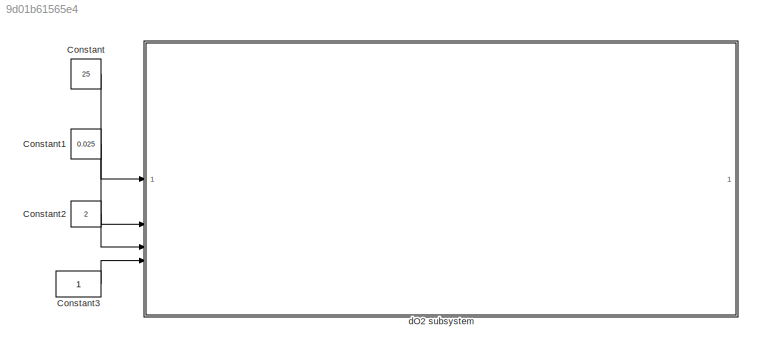
MODEL slx_9d01b61565e4
KIND model
CONFIG AbsTol = auto
CONFIG EnableMultiTasking = off
CONFIG FixedStep = 0.1
CONFIG MaxStep = auto
CONFIG MinStep = auto
CONFIG RelTol = 1e-3
CONFIG SampleTimeConstraint = Unconstrained
CONFIG SolverName = FixedStepAuto
CONFIG StartTime = 0.0
CONFIG StopTime = 10.0
BLOCK [Constant] Constant
  Value = 25
BLOCK [Constant] Constant1
  Value = 0.025
BLOCK [Constant] Constant2
  Value = 2
BLOCK [Constant] Constant3
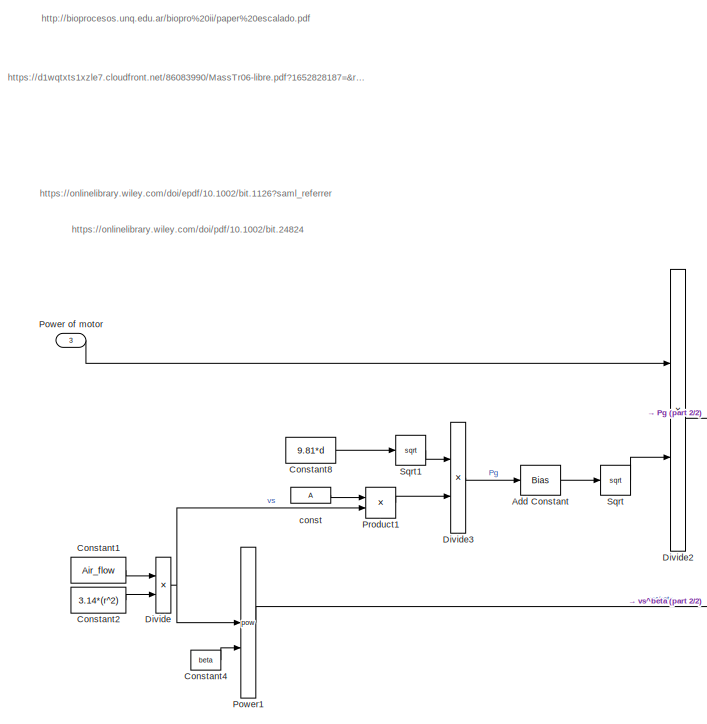
[diagram: dO2 subsystem - part 1/2, left side, full height]
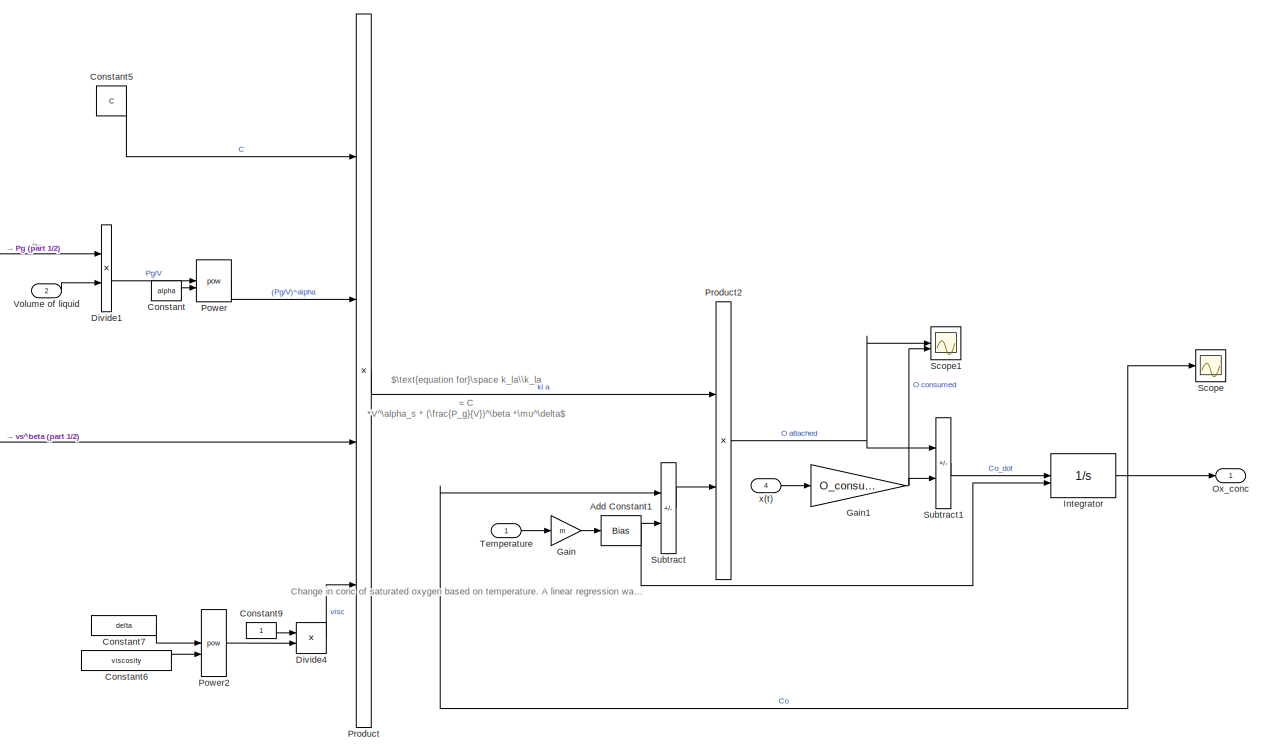
[diagram: dO2 subsystem - part 2/2, right side, full height]
BLOCK [SubSystem] dO2 subsystem
BLOCK [Bias] dO2 subsystem/Add Constant
  Bias = 1
  SaturateOnIntegerOverflow = off
BLOCK [Bias] dO2 subsystem/Add Constant1
  Bias = e
  SaturateOnIntegerOverflow = off
BLOCK [Constant] dO2 subsystem/Constant
  Value = alpha
BLOCK [Constant] dO2 subsystem/Constant1
  Value = Air_flow
BLOCK [Constant] dO2 subsystem/Constant2
  Value = 3.14*(r^2)
BLOCK [Constant] dO2 subsystem/Constant4
  Value = beta
BLOCK [Constant] dO2 subsystem/Constant5
  Value = C
BLOCK [Constant] dO2 subsystem/Constant6
  Value = viscosity
BLOCK [Constant] dO2 subsystem/Constant7
  Value = delta
BLOCK [Constant] dO2 subsystem/Constant8
  Value = 9.81*d
BLOCK [Constant] dO2 subsystem/Constant9
BLOCK [Product] dO2 subsystem/Divide
  Inputs = */
BLOCK [Product] dO2 subsystem/Divide1
  Inputs = */
BLOCK [Product] dO2 subsystem/Divide2
  Inputs = */
BLOCK [Product] dO2 subsystem/Divide3
  Inputs = /*
BLOCK [Product] dO2 subsystem/Divide4
  Inputs = */
BLOCK [Gain] dO2 subsystem/Gain
  Gain = m
BLOCK [Gain] dO2 subsystem/Gain1
  Gain = O_consumed
BLOCK [Integrator] dO2 subsystem/Integrator
  InitialCondition = m*Ti + e
  InitialConditionSource = external
BLOCK [Outport] dO2 subsystem/Ox_conc
BLOCK [Math] dO2 subsystem/Power
  Operator = pow
BLOCK [Inport] dO2 subsystem/Power of motor
  Port = 3
BLOCK [Math] dO2 subsystem/Power1
  Operator = pow
BLOCK [Math] dO2 subsystem/Power2
  Operator = pow
BLOCK [Product] dO2 subsystem/Product
  Inputs = 4
BLOCK [Product] dO2 subsystem/Product1
BLOCK [Product] dO2 subsystem/Product2
BLOCK [Scope] dO2 subsystem/Scope
  Floating = off
  NumInputPorts = 1
  ScopeSpecificationString = Simulink.scopes.TimeScopeBlockCfg('CurrentConfiguration', extmgr.ConfigurationSet(extmgr.Configuration('Core','General UI',true),extmgr.Configuration('Core','Source UI',true),extmgr.Configuration('Sources','WiredSimulink',true),extmgr.Configuration('Visuals','Time Domain',true,'SerializedDisplays',{struct('MinYLimReal','8.38318','MaxYLimReal','8.38409','YLabelReal','','MinYLimMag','8.38318','MaxYL...<+1355ch>
BLOCK [Scope] dO2 subsystem/Scope1
  Floating = off
  NumInputPorts = 2
  ScopeSpecificationString = Simulink.scopes.TimeScopeBlockCfg('CurrentConfiguration', extmgr.ConfigurationSet(extmgr.Configuration('Core','General UI',true),extmgr.Configuration('Core','Source UI',true),extmgr.Configuration('Sources','WiredSimulink',true,'DataLoggingVariableName','ScopeData1'),extmgr.Configuration('Visuals','Time Domain',true,'SerializedDisplays',{struct('MinYLimReal','-0.00001','MaxYLimReal','0.00011','YLab...<+1380ch>
BLOCK [Sqrt] dO2 subsystem/Sqrt
BLOCK [Sqrt] dO2 subsystem/Sqrt1
BLOCK [Sum] dO2 subsystem/Subtract
  IconShape = rectangular
  Inputs = -+
BLOCK [Sum] dO2 subsystem/Subtract1
  IconShape = rectangular
  Inputs = +-
BLOCK [Inport] dO2 subsystem/Temperature
BLOCK [Inport] dO2 subsystem/Volume of liquid
  Port = 2
BLOCK [Constant] dO2 subsystem/const
  Value = A
BLOCK [Inport] dO2 subsystem/x(t)
  Port = 4
ANNOTATION dO2 subsystem: $\text{equation for}\space k_la\\k_la = C *V^\alpha_s * (\frac{P_g}{V})^\beta *\mu^\delta$
ANNOTATION dO2 subsystem: Change in conc of saturated oxygen based on temperature. A linear regression was assumed in the range of 15 - 40 deg C for simplicity as the curve is close to a straight line. (see file Ox_conc_linear_regression.m)
ANNOTATION dO2 subsystem: http://bioprocesos.unq.edu.ar/biopro%20ii/paper%20escalado.pdf
ANNOTATION dO2 subsystem: https://d1wqtxts1xzle7.cloudfront.net/86083990/MassTr06-libre.pdf?1652828187=&response-content-disposition=inline%3B+filename%3DSimultaneous_Determination_of_Oxygen_Con.pdf&Expires=1693320232&Signature=cT0WufUoFrxjuPdJGbVLo4QoXSVqB1llCupeDkbPwvBGTrAJrYMzSobRzxnkgx671FYnx4G-HWNW9pRr5rOW2sojiWm9-xMMdIoObZIgvwRAe8ddChCfE4EtN7E38vVW-~N8isqnocr2KooJIBzTXSX1d969dYKALbyDclzDGhk2mnBZWyIczpO0KS24b7NT1cVUEN...<+179ch>
ANNOTATION dO2 subsystem: https://onlinelibrary.wiley.com/doi/epdf/10.1002/bit.1126?saml_referrer
ANNOTATION dO2 subsystem: https://onlinelibrary.wiley.com/doi/pdf/10.1002/bit.24824
LINE Constant1:1 -> dO2 subsystem:2
LINE Constant2:1 -> dO2 subsystem:3
LINE Constant3:1 -> dO2 subsystem:4
LINE Constant:1 -> dO2 subsystem:1
NET dO2 subsystem/Add Constant1:1 -> dO2 subsystem/Integrator:2, dO2 subsystem/Subtract:2
LINE dO2 subsystem/Add Constant:1 -> dO2 subsystem/Sqrt:1
LINE dO2 subsystem/Constant1:1 -> dO2 subsystem/Divide:1
LINE dO2 subsystem/Constant2:1 -> dO2 subsystem/Divide:2
LINE dO2 subsystem/Constant4:1 -> dO2 subsystem/Power1:2
LINE dO2 subsystem/Constant5:1 -> dO2 subsystem/Product:1
LINE dO2 subsystem/Constant6:1 -> dO2 subsystem/Power2:2
LINE dO2 subsystem/Constant7:1 -> dO2 subsystem/Power2:1
LINE dO2 subsystem/Constant8:1 -> dO2 subsystem/Sqrt1:1
LINE dO2 subsystem/Constant9:1 -> dO2 subsystem/Divide4:1
LINE dO2 subsystem/Constant:1 -> dO2 subsystem/Power:2
LINE dO2 subsystem/Divide1:1 -> dO2 subsystem/Power:1
LINE dO2 subsystem/Divide2:1 -> dO2 subsystem/Divide1:1
LINE dO2 subsystem/Divide3:1 -> dO2 subsystem/Add Constant:1
LINE dO2 subsystem/Divide4:1 -> dO2 subsystem/Product:4
NET dO2 subsystem/Divide:1 -> dO2 subsystem/Power1:1, dO2 subsystem/Product1:2
NET dO2 subsystem/Gain1:1 -> dO2 subsystem/Scope1:2, dO2 subsystem/Subtract1:2
LINE dO2 subsystem/Gain:1 -> dO2 subsystem/Add Constant1:1
NET dO2 subsystem/Integrator:1 -> dO2 subsystem/Ox_conc:1, dO2 subsystem/Scope:1, dO2 subsystem/Subtract:1
LINE dO2 subsystem/Power of motor:1 -> dO2 subsystem/Divide2:1
LINE dO2 subsystem/Power1:1 -> dO2 subsystem/Product:3
LINE dO2 subsystem/Power2:1 -> dO2 subsystem/Divide4:2
LINE dO2 subsystem/Power:1 -> dO2 subsystem/Product:2
LINE dO2 subsystem/Product1:1 -> dO2 subsystem/Divide3:2
NET dO2 subsystem/Product2:1 -> dO2 subsystem/Scope1:1, dO2 subsystem/Subtract1:1
LINE dO2 subsystem/Product:1 -> dO2 subsystem/Product2:1
LINE dO2 subsystem/Sqrt1:1 -> dO2 subsystem/Divide3:1
LINE dO2 subsystem/Sqrt:1 -> dO2 subsystem/Divide2:2
LINE dO2 subsystem/Subtract1:1 -> dO2 subsystem/Integrator:1
LINE dO2 subsystem/Subtract:1 -> dO2 subsystem/Product2:2
LINE dO2 subsystem/Temperature:1 -> dO2 subsystem/Gain:1
LINE dO2 subsystem/Volume of liquid:1 -> dO2 subsystem/Divide1:2
LINE dO2 subsystem/const:1 -> dO2 subsystem/Product1:1
LINE dO2 subsystem/x(t):1 -> dO2 subsystem/Gain1:1
note: NET lines group one-source signal fan-out (src -> all destinations, sorted); 1:1 wires keep LINE
